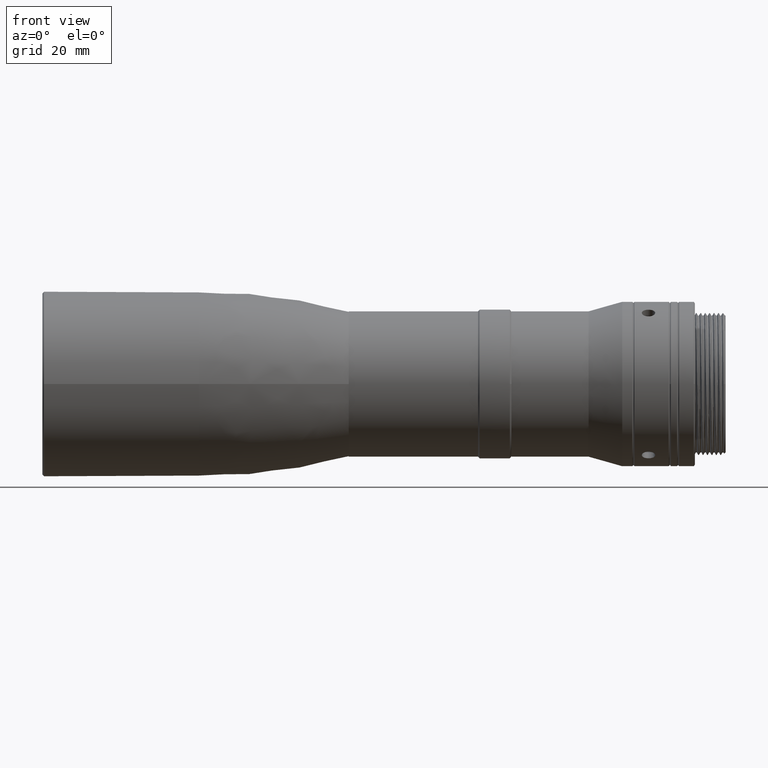
[diagram: clean part render]
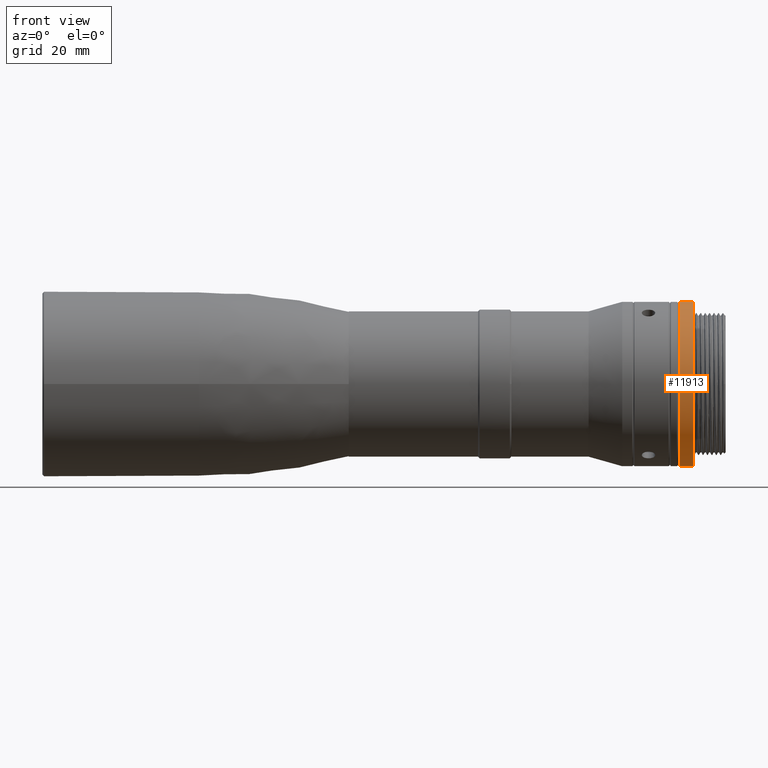
[diagram: same view with one face highlighted and labeled with its STEP entity id]
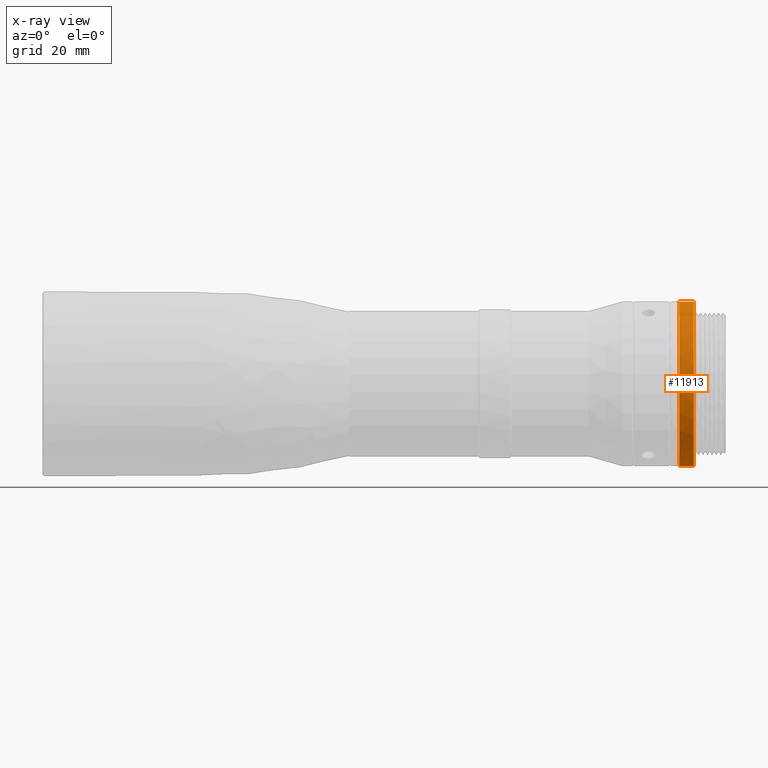
[diagram: x-ray of the same camera — body ghosted, the highlighted face saturated]
A machine part, front view. The second image highlights one B-rep face of the part: STEP entity #11913.
The next image is the same camera in x-ray: the body ghosted, the highlighted face saturated — about 0% of this face is hidden behind the body in this view.
In plain terms, the highlighted cylindrical surface (partial cylindrical patch) has radius 14.7 mm, axis along (1, -0, 0).
Its self-contained STEP definition (entity closure, byte-faithful):
#140 = DIRECTION ( 'NONE',  ( 1.000000000000000000, -0.000000000000000000, 0.000000000000000000 ) ) ;
#575 = ORIENTED_EDGE ( 'NONE', *, *, #14998, .T. ) ;
#1256 = CARTESIAN_POINT ( 'NONE',  ( 59.11800156195831590, -2.930988785009999904E-14, -14.69999971574159225 ) ) ;
#1970 = LINE ( 'NONE', #7794, #17461 ) ;
#2860 = CIRCLE ( 'NONE', #10487, 14.69999999999999929 ) ;
#2901 = CYLINDRICAL_SURFACE ( 'NONE', #15979, 14.69999999999999929 ) ;
#3016 = DIRECTION ( 'NONE',  ( 1.000000000000000000, 0.000000000000000000, 0.000000000000000000 ) ) ;
#3103 = CARTESIAN_POINT ( 'NONE',  ( 61.71799843804001995, 0.000000000000000000, 0.000000000000000000 ) ) ;
#3608 = VERTEX_POINT ( 'NONE', #1256 ) ;
#3691 = EDGE_LOOP ( 'NONE', ( #6710, #9103, #575, #13458, #6789 ) ) ;
#3765 = DIRECTION ( 'NONE',  ( 1.000000000000000000, -0.000000000000000000, 0.000000000000000000 ) ) ;
#3818 = DIRECTION ( 'NONE',  ( 1.000000000000000000, 0.000000000000000000, 0.000000000000000000 ) ) ;
#4639 = CARTESIAN_POINT ( 'NONE',  ( 59.11800156195999989, 0.000000000000000000, -14.69999999999999929 ) ) ;
#4959 = EDGE_CURVE ( 'NONE', #18600, #7970, #10558, .T. ) ;
#6710 = ORIENTED_EDGE ( 'NONE', *, *, #17419, .F. ) ;
#6789 = ORIENTED_EDGE ( 'NONE', *, *, #4959, .F. ) ;
#6936 = VERTEX_POINT ( 'NONE', #11797 ) ;
#6958 = DIRECTION ( 'NONE',  ( 0.000000000000000000, 0.000000000000000000, -1.000000000000000000 ) ) ;
#7504 = DIRECTION ( 'NONE',  ( 0.000000000000000000, -1.000000000000000000, 0.000000000000000000 ) ) ;
#7509 = VECTOR ( 'NONE', #17870, 1000.000000000000000 ) ;
#7794 = CARTESIAN_POINT ( 'NONE',  ( 59.11800156195999989, 1.800230794746609123E-15, 14.69999999999999929 ) ) ;
#7970 = VERTEX_POINT ( 'NONE', #17935 ) ;
#8456 = EDGE_CURVE ( 'NONE', #10187, #3608, #18064, .T. ) ;
#8524 = CARTESIAN_POINT ( 'NONE',  ( 59.11800156195999989, 0.000000000000000000, 0.000000000000000000 ) ) ;
#9103 = ORIENTED_EDGE ( 'NONE', *, *, #8456, .T. ) ;
#9966 = EDGE_CURVE ( 'NONE', #7970, #6936, #2860, .T. ) ;
#10187 = VERTEX_POINT ( 'NONE', #14497 ) ;
#10487 = AXIS2_PLACEMENT_3D ( 'NONE', #3103, #3016, #7504 ) ;
#10558 = CIRCLE ( 'NONE', #11446, 14.69999999999999929 ) ;
#11363 = FACE_OUTER_BOUND ( 'NONE', #3691, .T. ) ;
#11446 = AXIS2_PLACEMENT_3D ( 'NONE', #14847, #11720, #16373 ) ;
#11720 = DIRECTION ( 'NONE',  ( 1.000000000000000000, 0.000000000000000000, 0.000000000000000000 ) ) ;
#11797 = CARTESIAN_POINT ( 'NONE',  ( 61.71799843804001995, 0.000000000000000000, -14.69999999999999929 ) ) ;
#11913 = ADVANCED_FACE ( 'NONE', ( #11363 ), #2901, .T. ) ;
#12865 = AXIS2_PLACEMENT_3D ( 'NONE', #16841, #3818, #6958 ) ;
#13381 = LINE ( 'NONE', #4639, #7509 ) ;
#13458 = ORIENTED_EDGE ( 'NONE', *, *, #9966, .F. ) ;
#14497 = CARTESIAN_POINT ( 'NONE',  ( 59.11800156195831590, 1.800230493953842227E-15, 14.69999971574177344 ) ) ;
#14512 = CARTESIAN_POINT ( 'NONE',  ( 61.71799843804001995, 1.800230794746609123E-15, 14.69999999999999929 ) ) ;
#14847 = CARTESIAN_POINT ( 'NONE',  ( 61.71799843804001995, 0.000000000000000000, 0.000000000000000000 ) ) ;
#14998 = EDGE_CURVE ( 'NONE', #3608, #6936, #13381, .T. ) ;
#15979 = AXIS2_PLACEMENT_3D ( 'NONE', #8524, #140, #18602 ) ;
#16373 = DIRECTION ( 'NONE',  ( 0.000000000000000000, -1.000000000000000000, 0.000000000000000000 ) ) ;
#16841 = CARTESIAN_POINT ( 'NONE',  ( 59.11800156195831590, -2.930988785009999904E-14, 9.059419880941002215E-14 ) ) ;
#17419 = EDGE_CURVE ( 'NONE', #10187, #18600, #1970, .T. ) ;
#17461 = VECTOR ( 'NONE', #3765, 1000.000000000000000 ) ;
#17870 = DIRECTION ( 'NONE',  ( 1.000000000000000000, -0.000000000000000000, 0.000000000000000000 ) ) ;
#17935 = CARTESIAN_POINT ( 'NONE',  ( 61.71799843804001995, -14.69999971574189424, 8.500145032286354763E-14 ) ) ;
#18064 = CIRCLE ( 'NONE', #12865, 14.69999971574168285 ) ;
#18600 = VERTEX_POINT ( 'NONE', #14512 ) ;
#18602 = DIRECTION ( 'NONE',  ( 0.000000000000000000, 0.000000000000000000, -1.000000000000000000 ) ) ;